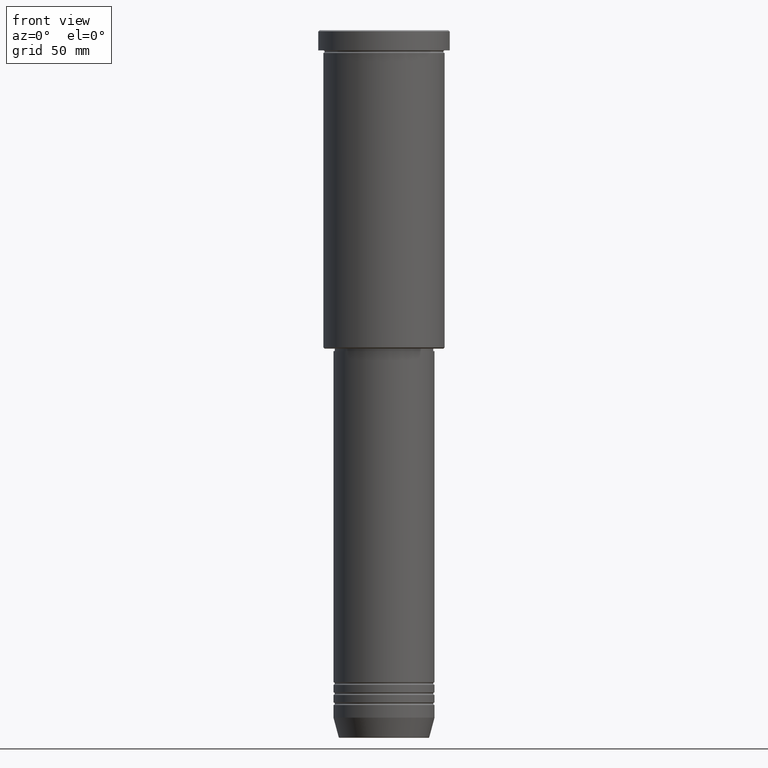
[diagram: clean part render]
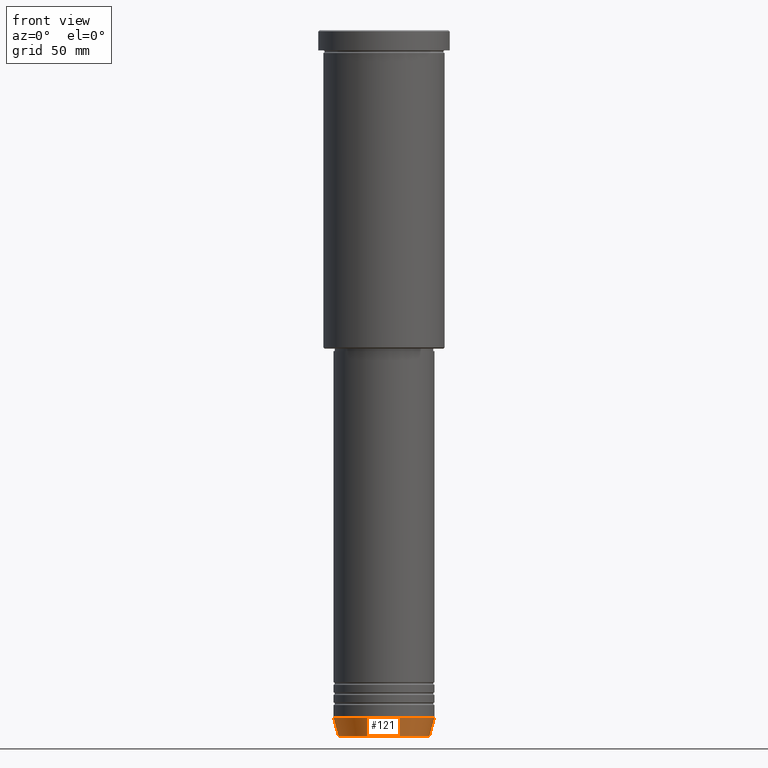
[diagram: same view with one face highlighted and labeled with its STEP entity id]
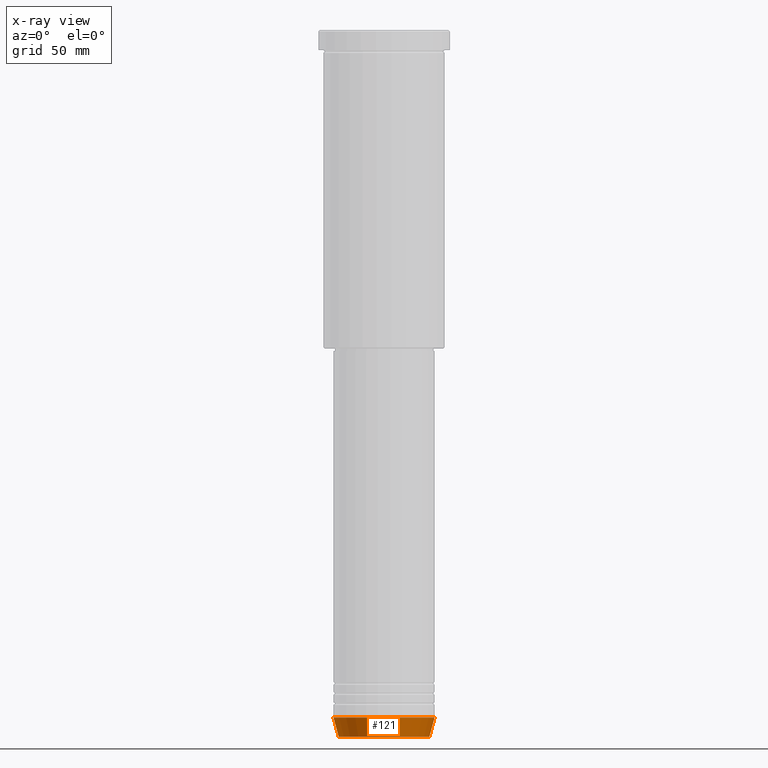
[diagram: x-ray of the same camera — body ghosted, the highlighted face saturated]
A machine part, front view. The second image highlights one B-rep face of the part: STEP entity #121.
The next image is the same camera in x-ray: the body ghosted, the highlighted face saturated — about 0% of this face is hidden behind the body in this view.
In plain terms, the highlighted conical surface has half-angle 15 deg.
Its self-contained STEP definition (entity closure, byte-faithful):
#14 = DIRECTION ( 'NONE',  ( 1.000000000000000000, 0.000000000000000000, 0.000000000000000000 ) ) ;
#48 = DIRECTION ( 'NONE',  ( -0.2588190451025212391, 3.169619151431771721E-17, 0.9659258262890680902 ) ) ;
#70 = CARTESIAN_POINT ( 'NONE',  ( -20.00000000000000355, 2.449293598294706907E-15, -272.0000000000000000 ) ) ;
#94 = LINE ( 'NONE', #470, #760 ) ;
#121 = ADVANCED_FACE ( 'NONE', ( #685 ), #254, .T. ) ;
#122 = EDGE_CURVE ( 'NONE', #136, #505, #137, .T. ) ;
#136 = VERTEX_POINT ( 'NONE', #319 ) ;
#137 = LINE ( 'NONE', #508, #328 ) ;
#142 = ORIENTED_EDGE ( 'NONE', *, *, #615, .F. ) ;
#169 = EDGE_LOOP ( 'NONE', ( #730, #623, #1012, #142 ) ) ;
#233 = CIRCLE ( 'NONE', #496, 20.00000000000000355 ) ;
#254 = CONICAL_SURFACE ( 'NONE', #833, 20.00000000000000355, 0.2617993877991499629 ) ;
#319 = CARTESIAN_POINT ( 'NONE',  ( -17.95570587970608045, 2.324116685748021371E-15, -279.6294095225512706 ) ) ;
#328 = VECTOR ( 'NONE', #48, 1000.000000000000114 ) ;
#401 = EDGE_CURVE ( 'NONE', #715, #414, #94, .T. ) ;
#414 = VERTEX_POINT ( 'NONE', #744 ) ;
#454 = CARTESIAN_POINT ( 'NONE',  ( 0.000000000000000000, 0.000000000000000000, -272.0000000000000000 ) ) ;
#468 = DIRECTION ( 'NONE',  ( -0.000000000000000000, -0.000000000000000000, 1.000000000000000000 ) ) ;
#470 = CARTESIAN_POINT ( 'NONE',  ( 20.00000000000000355, 0.000000000000000000, -272.0000000000000000 ) ) ;
#496 = AXIS2_PLACEMENT_3D ( 'NONE', #454, #745, #1114 ) ;
#505 = VERTEX_POINT ( 'NONE', #70 ) ;
#508 = CARTESIAN_POINT ( 'NONE',  ( -20.00000000000000355, 2.449293598294706907E-15, -272.0000000000000000 ) ) ;
#557 = CARTESIAN_POINT ( 'NONE',  ( 17.95570587970608045, 0.000000000000000000, -279.6294095225512706 ) ) ;
#564 = DIRECTION ( 'NONE',  ( 0.2588190451025212391, 0.000000000000000000, 0.9659258262890680902 ) ) ;
#569 = AXIS2_PLACEMENT_3D ( 'NONE', #901, #468, #14 ) ;
#599 = DIRECTION ( 'NONE',  ( -0.000000000000000000, -0.000000000000000000, 1.000000000000000000 ) ) ;
#615 = EDGE_CURVE ( 'NONE', #505, #414, #233, .T. ) ;
#623 = ORIENTED_EDGE ( 'NONE', *, *, #626, .T. ) ;
#626 = EDGE_CURVE ( 'NONE', #136, #715, #1088, .T. ) ;
#685 = FACE_OUTER_BOUND ( 'NONE', #169, .T. ) ;
#715 = VERTEX_POINT ( 'NONE', #557 ) ;
#730 = ORIENTED_EDGE ( 'NONE', *, *, #122, .F. ) ;
#744 = CARTESIAN_POINT ( 'NONE',  ( 20.00000000000000355, 0.000000000000000000, -272.0000000000000000 ) ) ;
#745 = DIRECTION ( 'NONE',  ( -0.000000000000000000, -0.000000000000000000, 1.000000000000000000 ) ) ;
#760 = VECTOR ( 'NONE', #564, 1000.000000000000114 ) ;
#833 = AXIS2_PLACEMENT_3D ( 'NONE', #1050, #599, #873 ) ;
#873 = DIRECTION ( 'NONE',  ( 1.000000000000000000, 0.000000000000000000, 0.000000000000000000 ) ) ;
#901 = CARTESIAN_POINT ( 'NONE',  ( 0.000000000000000000, 0.000000000000000000, -279.6294095225512706 ) ) ;
#1012 = ORIENTED_EDGE ( 'NONE', *, *, #401, .T. ) ;
#1050 = CARTESIAN_POINT ( 'NONE',  ( 0.000000000000000000, 0.000000000000000000, -272.0000000000000000 ) ) ;
#1088 = CIRCLE ( 'NONE', #569, 17.95570587970608045 ) ;
#1114 = DIRECTION ( 'NONE',  ( 1.000000000000000000, 0.000000000000000000, 0.000000000000000000 ) ) ;